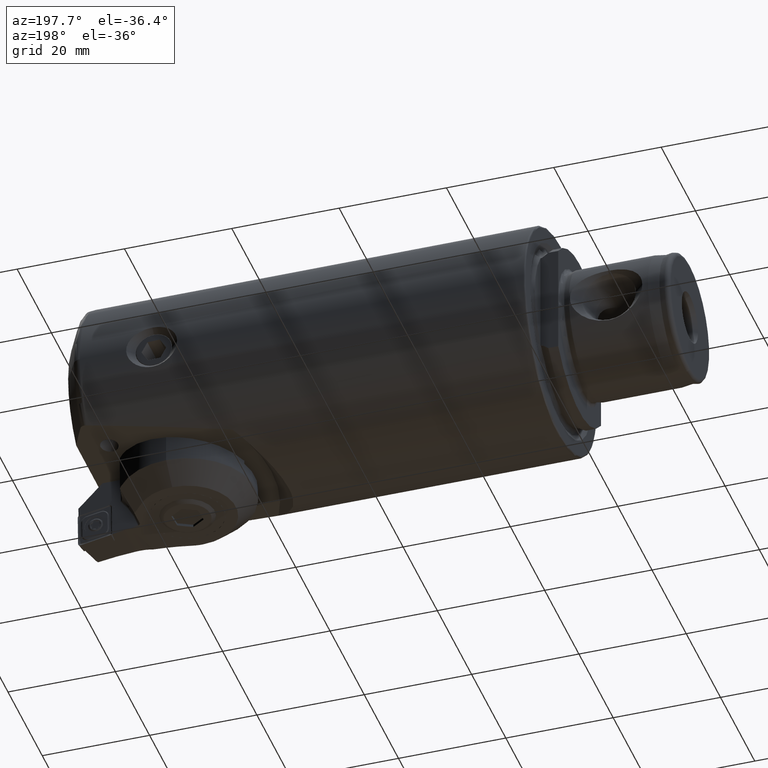
[diagram: clean part render]
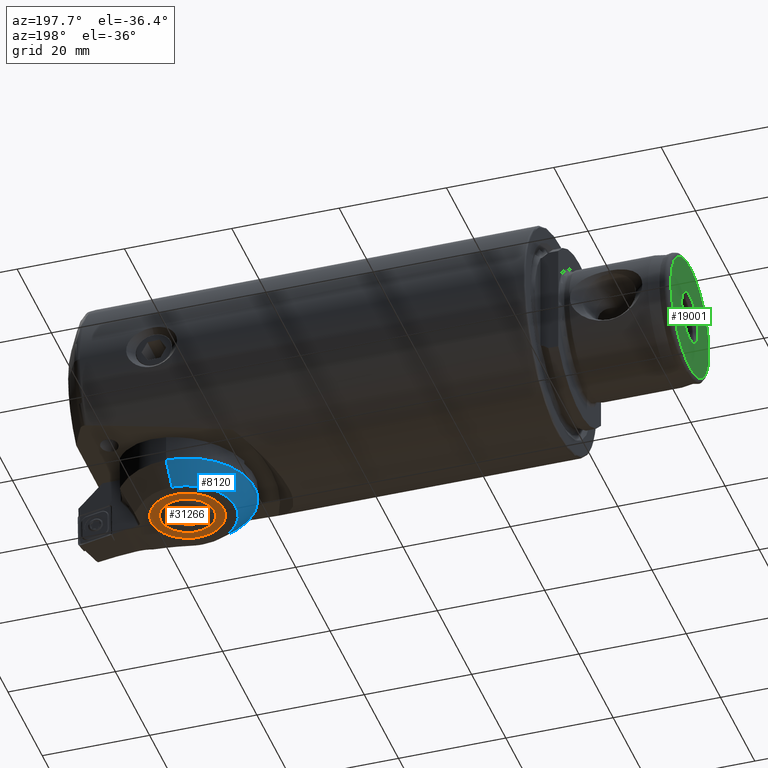
[diagram: same view with three faces highlighted in distinct colors, each labeled with its STEP entity id]
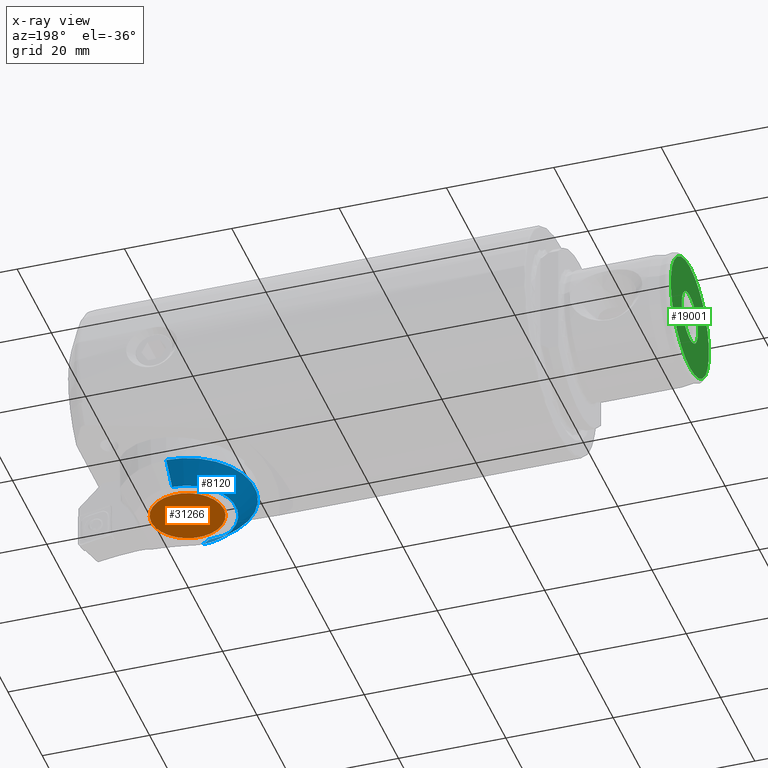
[diagram: x-ray of the same camera — body ghosted, the three highlighted faces saturated]
A machine part, auxiliary view with three faces highlighted in distinct colors.
The next image is the same camera in x-ray (body ghosted, the three faces saturated) — at least one of them is partly hidden behind the body in this view.
Their STEP definitions:

[orange] entity #31266 — the highlighted planar face has unit normal (0, -0, -1).
#288 = CARTESIAN_POINT ( 'NONE',  ( -6.999999999999997300, -4.814824860968089600E-032, 0.0000000000000000000 ) ) ;
#2077 = CARTESIAN_POINT ( 'NONE',  ( -6.999999999999997300, -6.750000000000000000, 0.0000000000000000000 ) ) ;
#2961 = AXIS2_PLACEMENT_3D ( 'NONE', #288, #22653, #6107 ) ;
#3250 = PLANE ( 'NONE',  #2961 ) ;
#6075 = CARTESIAN_POINT ( 'NONE',  ( -6.999999999999997300, -4.814824860968089600E-032, 0.0000000000000000000 ) ) ;
#6107 = DIRECTION ( 'NONE',  ( -3.255532565731749500E-017, -1.000000000000000000, 0.0000000000000000000 ) ) ;
#6625 = EDGE_CURVE ( 'NONE', #19450, #22059, #27994, .T. ) ;
#8434 = CARTESIAN_POINT ( 'NONE',  ( -6.999999999999997300, 6.750000000000000000, 8.266365894244634300E-016 ) ) ;
#8868 = DIRECTION ( 'NONE',  ( 0.0000000000000000000, -1.000000000000000000, 0.0000000000000000000 ) ) ;
#14373 = AXIS2_PLACEMENT_3D ( 'NONE', #31034, #14540, #33799 ) ;
#14540 = DIRECTION ( 'NONE',  ( -1.000000000000000000, 3.255532565731749500E-017, 0.0000000000000000000 ) ) ;
#18314 = EDGE_LOOP ( 'NONE', ( #30350, #34671 ) ) ;
#19450 = VERTEX_POINT ( 'NONE', #2077 ) ;
#20673 = CIRCLE ( 'NONE', #32941, 6.750000000000000000 ) ;
#22059 = VERTEX_POINT ( 'NONE', #8434 ) ;
#22653 = DIRECTION ( 'NONE',  ( -1.000000000000000000, 3.255532565731749500E-017, 0.0000000000000000000 ) ) ;
#25403 = DIRECTION ( 'NONE',  ( -1.000000000000000000, 3.255532565731749500E-017, 0.0000000000000000000 ) ) ;
#25598 = FACE_OUTER_BOUND ( 'NONE', #18314, .T. ) ;
#27994 = CIRCLE ( 'NONE', #14373, 6.750000000000000000 ) ;
#30350 = ORIENTED_EDGE ( 'NONE', *, *, #6625, .T. ) ;
#31034 = CARTESIAN_POINT ( 'NONE',  ( -6.999999999999997300, -4.814824860968089600E-032, 0.0000000000000000000 ) ) ;
#31266 = ADVANCED_FACE ( 'NONE', ( #25598 ), #3250, .T. ) ;
#32941 = AXIS2_PLACEMENT_3D ( 'NONE', #6075, #25403, #8868 ) ;
#33799 = DIRECTION ( 'NONE',  ( 0.0000000000000000000, -1.000000000000000000, 0.0000000000000000000 ) ) ;
#34671 = ORIENTED_EDGE ( 'NONE', *, *, #35488, .T. ) ;
#35488 = EDGE_CURVE ( 'NONE', #22059, #19450, #20673, .T. ) ;

[blue] entity #8120 — the highlighted conical surface has half-angle 45 deg.
#985 = ORIENTED_EDGE ( 'NONE', *, *, #2970, .T. ) ;
#1454 = CONICAL_SURFACE ( 'NONE', #3430, 12.50000000000000900, 0.7853981633974430600 ) ;
#2463 = AXIS2_PLACEMENT_3D ( 'NONE', #14374, #33638, #17124 ) ;
#2970 = EDGE_CURVE ( 'NONE', #34384, #18001, #33340, .T. ) ;
#3430 = AXIS2_PLACEMENT_3D ( 'NONE', #26891, #32426, #10348 ) ;
#3666 = VERTEX_POINT ( 'NONE', #31616 ) ;
#8120 = ADVANCED_FACE ( 'NONE', ( #10642 ), #1454, .T. ) ;
#9646 = AXIS2_PLACEMENT_3D ( 'NONE', #22242, #22002, #21887 ) ;
#10348 = DIRECTION ( 'NONE',  ( 6.938893903907223400E-017, 1.160989309290089500E-016, -1.000000000000000000 ) ) ;
#10432 = VECTOR ( 'NONE', #21044, 1000.000000000000000 ) ;
#10642 = FACE_OUTER_BOUND ( 'NONE', #21024, .T. ) ;
#11496 = ORIENTED_EDGE ( 'NONE', *, *, #25265, .T. ) ;
#13517 = LINE ( 'NONE', #35410, #29026 ) ;
#14374 = CARTESIAN_POINT ( 'NONE',  ( -6.999999999999999100, 0.0000000000000000000, 1.734723475976807100E-015 ) ) ;
#16152 = DIRECTION ( 'NONE',  ( 0.7071067811865511300, 5.756164668147640000E-017, -0.7071067811865440200 ) ) ;
#17124 = DIRECTION ( 'NONE',  ( 0.0000000000000000000, 1.000000000000000000, -1.160989309290090000E-016 ) ) ;
#17516 = ORIENTED_EDGE ( 'NONE', *, *, #25742, .F. ) ;
#18001 = VERTEX_POINT ( 'NONE', #22811 ) ;
#18369 = CARTESIAN_POINT ( 'NONE',  ( -3.499999999999996900, 7.957186232157970700E-017, 12.50000000000001100 ) ) ;
#18383 = CARTESIAN_POINT ( 'NONE',  ( -7.000000000000000000, 1.308778829146037300E-015, -9.000000000000037300 ) ) ;
#21024 = EDGE_LOOP ( 'NONE', ( #17516, #28315, #11496, #985 ) ) ;
#21044 = DIRECTION ( 'NONE',  ( 0.7071067811865511300, -2.003143039179553100E-017, 0.7071067811865440200 ) ) ;
#21887 = DIRECTION ( 'NONE',  ( -6.938893903907223400E-017, -1.160989309290089500E-016, 1.000000000000000000 ) ) ;
#22002 = DIRECTION ( 'NONE',  ( -1.000000000000000000, 3.469446951953600600E-017, 6.720577169422240000E-017 ) ) ;
#22242 = CARTESIAN_POINT ( 'NONE',  ( -3.499999999999996000, 0.0000000000000000000, 1.734723475976807100E-015 ) ) ;
#22811 = CARTESIAN_POINT ( 'NONE',  ( -3.499999999999995100, -2.266177468111158100E-016, 12.50000000000000500 ) ) ;
#23386 = LINE ( 'NONE', #18369, #10432 ) ;
#25265 = EDGE_CURVE ( 'NONE', #35674, #34384, #13517, .T. ) ;
#25467 = CARTESIAN_POINT ( 'NONE',  ( -3.499999999999996900, 1.145047027479917100E-015, -12.50000000000000200 ) ) ;
#25742 = EDGE_CURVE ( 'NONE', #3666, #18001, #23386, .T. ) ;
#26891 = CARTESIAN_POINT ( 'NONE',  ( -3.499999999999996000, 0.0000000000000000000, 1.734723475976807100E-015 ) ) ;
#28315 = ORIENTED_EDGE ( 'NONE', *, *, #30803, .F. ) ;
#29026 = VECTOR ( 'NONE', #16152, 1000.000000000000000 ) ;
#30803 = EDGE_CURVE ( 'NONE', #35674, #3666, #34211, .T. ) ;
#31616 = CARTESIAN_POINT ( 'NONE',  ( -6.999999999999998200, 1.291471232557466800E-016, 9.000000000000040900 ) ) ;
#32426 = DIRECTION ( 'NONE',  ( 1.000000000000000000, -3.469446951953600600E-017, -6.720577169422240000E-017 ) ) ;
#33340 = CIRCLE ( 'NONE', #9646, 12.50000000000000900 ) ;
#33638 = DIRECTION ( 'NONE',  ( -1.000000000000000000, 6.724979517685350200E-017, 6.720577169422240000E-017 ) ) ;
#34211 = CIRCLE ( 'NONE', #2463, 9.000000000000039100 ) ;
#34384 = VERTEX_POINT ( 'NONE', #25467 ) ;
#35410 = CARTESIAN_POINT ( 'NONE',  ( -3.499999999999995100, 1.451236636612612800E-015, -12.50000000000000700 ) ) ;
#35674 = VERTEX_POINT ( 'NONE', #18383 ) ;

[green] entity #19001 — the highlighted planar face has unit normal (1, 0, 0).
#125 = DIRECTION ( 'NONE',  ( 0.0000000000000000000, 0.0000000000000000000, -1.000000000000000000 ) ) ;
#502 = EDGE_CURVE ( 'NONE', #6356, #30914, #7908, .T. ) ;
#874 = ORIENTED_EDGE ( 'NONE', *, *, #502, .T. ) ;
#3775 = CARTESIAN_POINT ( 'NONE',  ( -23.99999999999999300, 0.0000000000000000000, 0.0000000000000000000 ) ) ;
#3807 = DIRECTION ( 'NONE',  ( -1.000000000000000000, -0.0000000000000000000, -0.0000000000000000000 ) ) ;
#3849 = DIRECTION ( 'NONE',  ( 0.0000000000000000000, 0.0000000000000000000, 1.000000000000000000 ) ) ;
#4093 = CARTESIAN_POINT ( 'NONE',  ( -23.99999999999999300, 0.0000000000000000000, 0.0000000000000000000 ) ) ;
#6356 = VERTEX_POINT ( 'NONE', #16411 ) ;
#6926 = DIRECTION ( 'NONE',  ( 0.0000000000000000000, 0.0000000000000000000, 1.000000000000000000 ) ) ;
#7007 = EDGE_CURVE ( 'NONE', #30914, #6356, #34871, .T. ) ;
#7908 = CIRCLE ( 'NONE', #33983, 11.09999999999999800 ) ;
#11252 = FACE_BOUND ( 'NONE', #15858, .T. ) ;
#12124 = AXIS2_PLACEMENT_3D ( 'NONE', #33326, #16839, #125 ) ;
#12322 = VERTEX_POINT ( 'NONE', #24871 ) ;
#12742 = CARTESIAN_POINT ( 'NONE',  ( -23.99999999999999300, 0.0000000000000000000, 0.0000000000000000000 ) ) ;
#13651 = DIRECTION ( 'NONE',  ( -1.000000000000000000, -0.0000000000000000000, -0.0000000000000000000 ) ) ;
#13697 = EDGE_CURVE ( 'NONE', #12322, #26293, #21854, .T. ) ;
#15534 = DIRECTION ( 'NONE',  ( 0.0000000000000000000, 0.0000000000000000000, 1.000000000000000000 ) ) ;
#15858 = EDGE_LOOP ( 'NONE', ( #24540, #29434 ) ) ;
#16411 = CARTESIAN_POINT ( 'NONE',  ( -23.99999999999999300, 0.0000000000000000000, 11.09999999999999800 ) ) ;
#16839 = DIRECTION ( 'NONE',  ( 1.000000000000000000, 0.0000000000000000000, 0.0000000000000000000 ) ) ;
#18588 = FACE_OUTER_BOUND ( 'NONE', #28759, .T. ) ;
#19001 = ADVANCED_FACE ( 'NONE', ( #11252, #18588 ), #24787, .F. ) ;
#19033 = ORIENTED_EDGE ( 'NONE', *, *, #7007, .T. ) ;
#20492 = CARTESIAN_POINT ( 'NONE',  ( -23.99999999999999300, 1.407599613553637800E-015, -11.09999999999999800 ) ) ;
#21854 = CIRCLE ( 'NONE', #22592, 4.749999999999999100 ) ;
#22592 = AXIS2_PLACEMENT_3D ( 'NONE', #4093, #23454, #6926 ) ;
#23454 = DIRECTION ( 'NONE',  ( -1.000000000000000000, -0.0000000000000000000, -0.0000000000000000000 ) ) ;
#23888 = CARTESIAN_POINT ( 'NONE',  ( -23.99999999999999300, 5.817072295949926400E-016, -4.749999999999999100 ) ) ;
#24540 = ORIENTED_EDGE ( 'NONE', *, *, #13697, .F. ) ;
#24787 = PLANE ( 'NONE',  #12124 ) ;
#24871 = CARTESIAN_POINT ( 'NONE',  ( -23.99999999999999300, 0.0000000000000000000, 4.749999999999999100 ) ) ;
#25258 = AXIS2_PLACEMENT_3D ( 'NONE', #12742, #32011, #15534 ) ;
#26293 = VERTEX_POINT ( 'NONE', #23888 ) ;
#28759 = EDGE_LOOP ( 'NONE', ( #874, #19033 ) ) ;
#29434 = ORIENTED_EDGE ( 'NONE', *, *, #31447, .F. ) ;
#30143 = CARTESIAN_POINT ( 'NONE',  ( -23.99999999999999300, 0.0000000000000000000, 0.0000000000000000000 ) ) ;
#30914 = VERTEX_POINT ( 'NONE', #20492 ) ;
#31447 = EDGE_CURVE ( 'NONE', #26293, #12322, #35042, .T. ) ;
#32011 = DIRECTION ( 'NONE',  ( -1.000000000000000000, -0.0000000000000000000, -0.0000000000000000000 ) ) ;
#32129 = AXIS2_PLACEMENT_3D ( 'NONE', #30143, #13651, #32923 ) ;
#32923 = DIRECTION ( 'NONE',  ( 0.0000000000000000000, 0.0000000000000000000, 1.000000000000000000 ) ) ;
#33326 = CARTESIAN_POINT ( 'NONE',  ( -23.99999999999999300, 4.749999999999997300, 0.0000000000000000000 ) ) ;
#33983 = AXIS2_PLACEMENT_3D ( 'NONE', #3775, #3807, #3849 ) ;
#34871 = CIRCLE ( 'NONE', #32129, 11.09999999999999800 ) ;
#35042 = CIRCLE ( 'NONE', #25258, 4.749999999999999100 ) ;